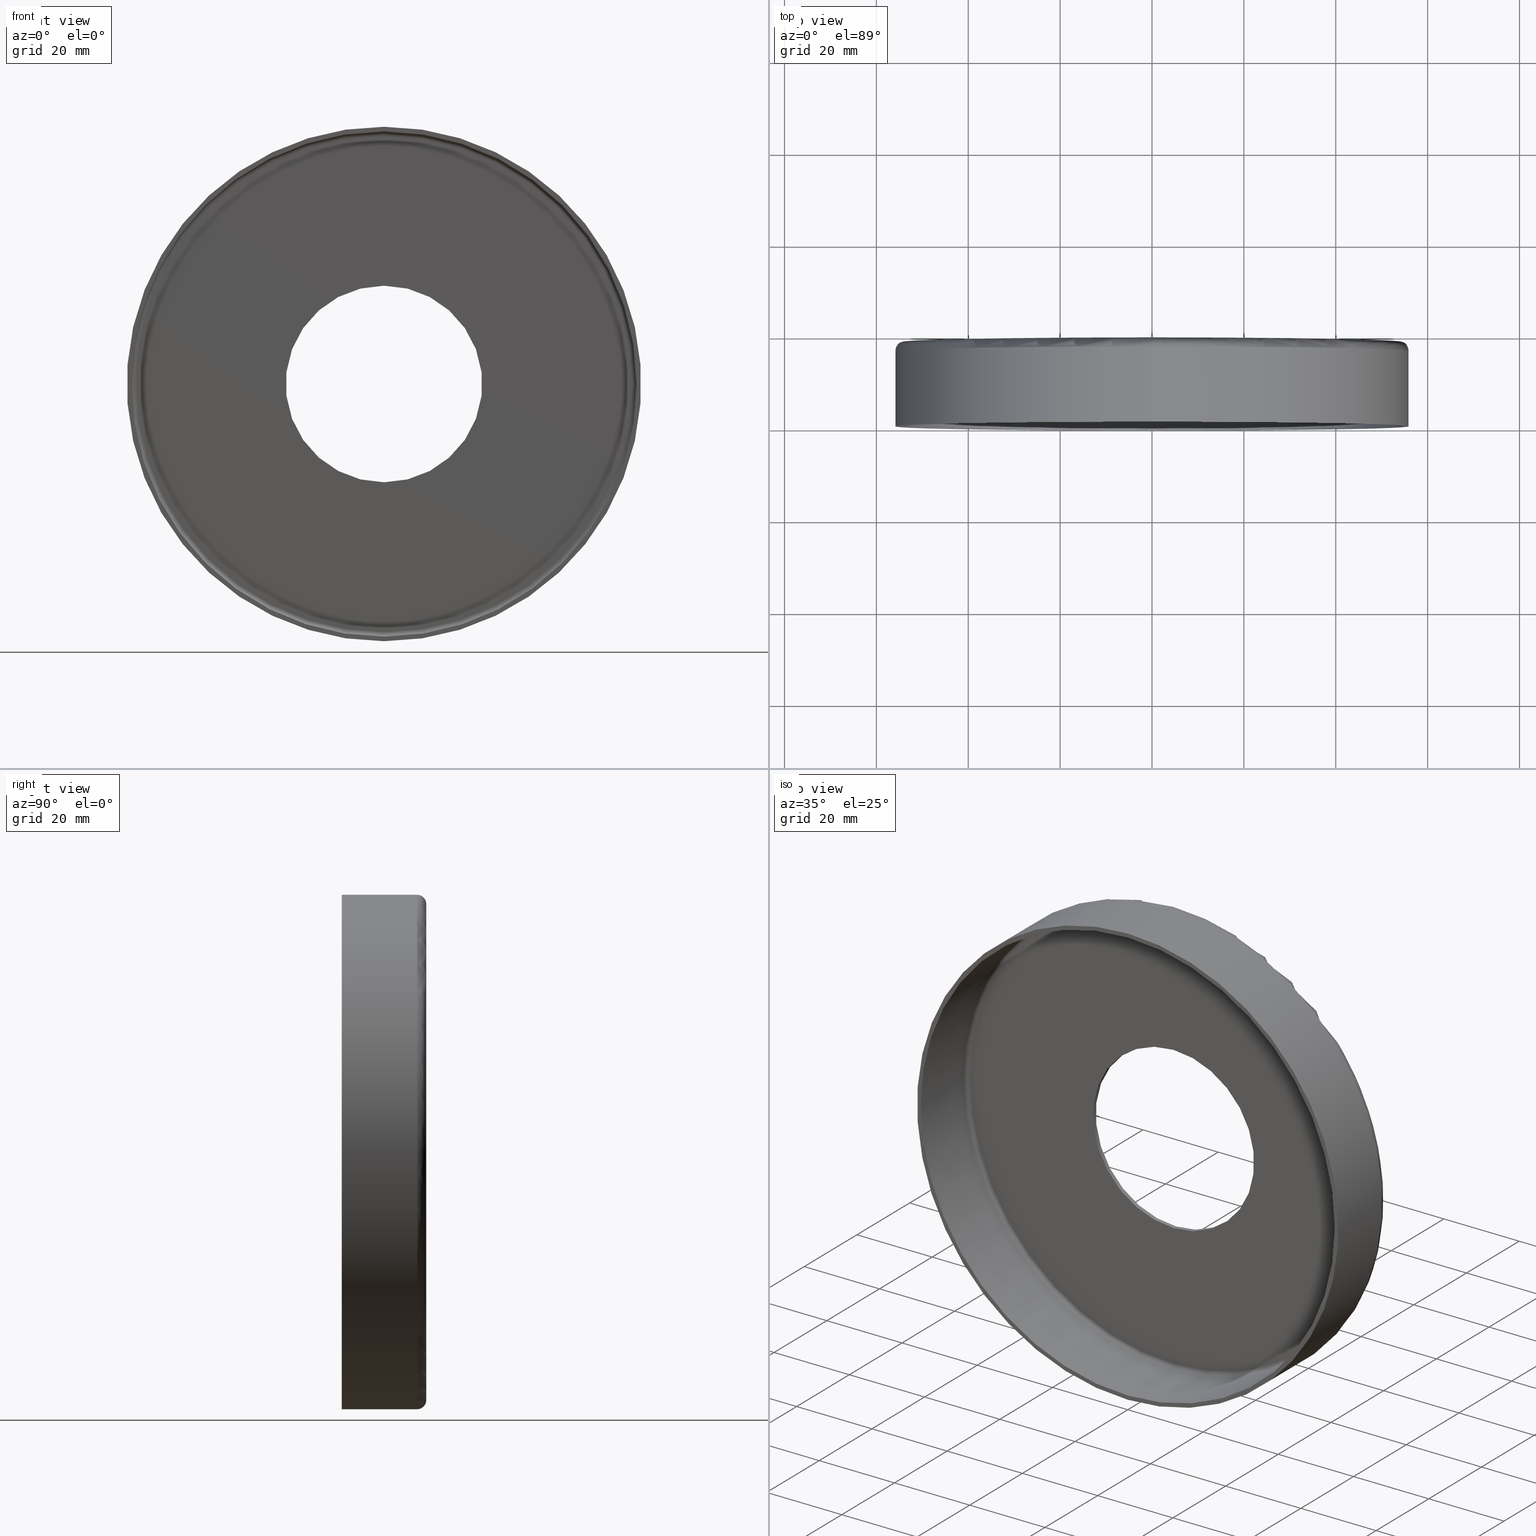
[diagram: canonical four-view strip — front | top / right | iso, engineering-drawing reading convention]
A machine part, canonical four-view strip (front | top / right | iso — engineering-drawing reading convention). The complete STEP part file that produces these views, byte-faithful:
ISO-10303-21;
HEADER;
FILE_DESCRIPTION (( 'STEP AP214' ),
    '1' );
FILE_NAME ('���. KRT510.STEP',
    '2014-06-03T10:10:46',
    ( '' ),
    ( '' ),
    'SwSTEP 2.0',
    'SolidWorks 2014',
    '' );
FILE_SCHEMA (( 'AUTOMOTIVE_DESIGN' ));
ENDSEC;

DATA;
#1 = AXIS2_PLACEMENT_3D ( 'NONE', #344, #253, #210 ) ;
#2 =( NAMED_UNIT ( * ) SI_UNIT ( $, .STERADIAN. ) SOLID_ANGLE_UNIT ( ) );
#3 = ORIENTED_EDGE ( 'NONE', *, *, #94, .F. ) ;
#4 = SURFACE_SIDE_STYLE ('',( #31 ) ) ;
#5 = VECTOR ( 'NONE', #15, 1000.000000000000000 ) ;
#6 = DIRECTION ( 'NONE',  ( 0.0000000000000000000, 0.0000000000000000000, 1.000000000000000000 ) ) ;
#7 = ORIENTED_EDGE ( 'NONE', *, *, #364, .F. ) ;
#8 = ADVANCED_FACE ( 'NONE', ( #284 ), #32, .T. ) ;
#9 = DIRECTION ( 'NONE',  ( -0.0000000000000000000, -1.000000000000000000, -0.0000000000000000000 ) ) ;
#10 =( GEOMETRIC_REPRESENTATION_CONTEXT ( 3 ) GLOBAL_UNCERTAINTY_ASSIGNED_CONTEXT ( ( #154 ) ) GLOBAL_UNIT_ASSIGNED_CONTEXT ( ( #223, #289, #349 ) ) REPRESENTATION_CONTEXT ( 'NONE', 'WORKASPACE' ) );
#11 = AXIS2_PLACEMENT_3D ( 'NONE', #114, #297, #328 ) ;
#12 = FILL_AREA_STYLE ('',( #191 ) ) ;
#13 = VERTEX_POINT ( 'NONE', #335 ) ;
#14 = PRESENTATION_STYLE_ASSIGNMENT (( #109 ) ) ;
#15 = DIRECTION ( 'NONE',  ( -0.0000000000000000000, 1.000000000000000000, -0.0000000000000000000 ) ) ;
#16 = ADVANCED_BREP_SHAPE_REPRESENTATION ( '�. KRT510', ( #238, #250 ), #301 ) ;
#17 = DIRECTION ( 'NONE',  ( 0.0000000000000000000, 0.0000000000000000000, -1.000000000000000000 ) ) ;
#18 = PRODUCT ( '���. KRT510', '���. KRT510', '', ( #299 ) ) ;
#19 = DIRECTION ( 'NONE',  ( 0.0000000000000000000, 1.000000000000000000, 0.0000000000000000000 ) ) ;
#20 = ORIENTED_EDGE ( 'NONE', *, *, #391, .T. ) ;
#21 = AXIS2_PLACEMENT_3D ( 'NONE', #319, #78, #318 ) ;
#22 = CYLINDRICAL_SURFACE ( 'NONE', #323, 21.39999999999999900 ) ;
#23 = CARTESIAN_POINT ( 'NONE',  ( 0.0000000000000000000, 17.39999999999999900, 54.00000000000000700 ) ) ;
#24 = CIRCLE ( 'NONE', #127, 2.000000000000001800 ) ;
#25 = TOROIDAL_SURFACE ( 'NONE', #140, 54.00000000000000700, 1.000000000000000000 ) ;
#26 = CARTESIAN_POINT ( 'NONE',  ( 0.0000000000000000000, 16.39999999999999900, -56.00000000000000700 ) ) ;
#27 = VERTEX_POINT ( 'NONE', #367 ) ;
#28 = FILL_AREA_STYLE ('',( #204 ) ) ;
#29 = ORIENTED_EDGE ( 'NONE', *, *, #96, .F. ) ;
#30 = CARTESIAN_POINT ( 'NONE',  ( 0.0000000000000000000, 0.0000000000000000000, 0.0000000000000000000 ) ) ;
#31 = SURFACE_STYLE_FILL_AREA ( #28 ) ;
#32 = TOROIDAL_SURFACE ( 'NONE', #111, 54.00000000000000700, 2.000000000000000000 ) ;
#33 = AXIS2_PLACEMENT_3D ( 'NONE', #288, #290, #355 ) ;
#34 = EDGE_CURVE ( 'NONE', #379, #76, #163, .T. ) ;
#35 = DIRECTION ( 'NONE',  ( -0.0000000000000000000, 1.000000000000000000, -0.0000000000000000000 ) ) ;
#36 = CARTESIAN_POINT ( 'NONE',  ( 0.0000000000000000000, 16.39999999999999900, 54.00000000000000700 ) ) ;
#37 = ORIENTED_EDGE ( 'NONE', *, *, #176, .F. ) ;
#38 = LINE ( 'NONE', #77, #153 ) ;
#39 = ADVANCED_FACE ( 'NONE', ( #182 ), #22, .F. ) ;
#40 = DIRECTION ( 'NONE',  ( 0.0000000000000000000, 1.000000000000000000, 0.0000000000000000000 ) ) ;
#41 = AXIS2_PLACEMENT_3D ( 'NONE', #135, #19, #226 ) ;
#42 = CARTESIAN_POINT ( 'NONE',  ( 6.858022075225179300E-015, 16.39999999999999900, 56.00000000000000700 ) ) ;
#43 = PRESENTATION_STYLE_ASSIGNMENT (( #244 ) ) ;
#44 = DIRECTION ( 'NONE',  ( 0.0000000000000000000, 0.0000000000000000000, 1.000000000000000000 ) ) ;
#45 = ORIENTED_EDGE ( 'NONE', *, *, #156, .F. ) ;
#46 = PRODUCT_DEFINITION_CONTEXT ( 'detailed design', #239, 'design' ) ;
#47 = CARTESIAN_POINT ( 'NONE',  ( 6.858022075225179300E-015, 0.0000000000000000000, 56.00000000000000700 ) ) ;
#48 = AXIS2_PLACEMENT_3D ( 'NONE', #68, #101, #6 ) ;
#49 = DIRECTION ( 'NONE',  ( -0.0000000000000000000, -1.000000000000000000, -0.0000000000000000000 ) ) ;
#50 = ORIENTED_EDGE ( 'NONE', *, *, #159, .F. ) ;
#51 = PRODUCT_DEFINITION_FORMATION_WITH_SPECIFIED_SOURCE ( 'ANY', '', #18, .NOT_KNOWN. ) ;
#52 = DIRECTION ( 'NONE',  ( 0.0000000000000000000, 1.000000000000000000, 0.0000000000000000000 ) ) ;
#53 = EDGE_LOOP ( 'NONE', ( #186, #112 ) ) ;
#54 = EDGE_LOOP ( 'NONE', ( #314, #320, #237, #321 ) ) ;
#55 = CIRCLE ( 'NONE', #308, 21.39999999999999900 ) ;
#56 = AXIS2_PLACEMENT_3D ( 'NONE', #384, #110, #198 ) ;
#57 = PLANE ( 'NONE',  #394 ) ;
#58 = MECHANICAL_DESIGN_GEOMETRIC_PRESENTATION_REPRESENTATION (  '', ( #267 ), #212 ) ;
#59 = CYLINDRICAL_SURFACE ( 'NONE', #117, 55.00000000000000700 ) ;
#60 = DIRECTION ( 'NONE',  ( -0.0000000000000000000, -1.000000000000000000, -0.0000000000000000000 ) ) ;
#61 = ORIENTED_EDGE ( 'NONE', *, *, #159, .T. ) ;
#62 = ORIENTED_EDGE ( 'NONE', *, *, #94, .T. ) ;
#63 = DIRECTION ( 'NONE',  ( 1.000000000000000000, 0.0000000000000000000, 0.0000000000000000000 ) ) ;
#64 = ORIENTED_EDGE ( 'NONE', *, *, #118, .F. ) ;
#65 = ORIENTED_EDGE ( 'NONE', *, *, #234, .T. ) ;
#66 = LINE ( 'NONE', #272, #387 ) ;
#67 = EDGE_CURVE ( 'NONE', #27, #245, #247, .T. ) ;
#68 = CARTESIAN_POINT ( 'NONE',  ( 0.0000000000000000000, 17.39999999999999900, 0.0000000000000000000 ) ) ;
#69 = CARTESIAN_POINT ( 'NONE',  ( 0.0000000000000000000, 18.39999999999999900, 0.0000000000000000000 ) ) ;
#70 = DIRECTION ( 'NONE',  ( 0.0000000000000000000, 1.000000000000000000, 0.0000000000000000000 ) ) ;
#71 = EDGE_LOOP ( 'NONE', ( #381, #92, #65, #211 ) ) ;
#72 = PLANE ( 'NONE',  #202 ) ;
#73 = AXIS2_PLACEMENT_3D ( 'NONE', #395, #87, #362 ) ;
#74 = CARTESIAN_POINT ( 'NONE',  ( 6.735557395310444200E-015, 0.0000000000000000000, 55.00000000000000700 ) ) ;
#75 = CARTESIAN_POINT ( 'NONE',  ( 0.0000000000000000000, 16.39999999999999900, 0.0000000000000000000 ) ) ;
#76 = VERTEX_POINT ( 'NONE', #132 ) ;
#77 = CARTESIAN_POINT ( 'NONE',  ( 6.858022075225179300E-015, 18.39999999999999900, 56.00000000000000700 ) ) ;
#78 = DIRECTION ( 'NONE',  ( -0.0000000000000000000, -1.000000000000000000, -0.0000000000000000000 ) ) ;
#79 = EDGE_CURVE ( 'NONE', #251, #177, #169, .T. ) ;
#80 = DIRECTION ( 'NONE',  ( 1.000000000000000000, -0.0000000000000000000, 1.224646799147353200E-016 ) ) ;
#81 = FACE_BOUND ( 'NONE', #329, .T. ) ;
#82 = CARTESIAN_POINT ( 'NONE',  ( 0.0000000000000000000, 17.39999999999999900, 0.0000000000000000000 ) ) ;
#83 = EDGE_LOOP ( 'NONE', ( #128, #61 ) ) ;
#84 = VERTEX_POINT ( 'NONE', #187 ) ;
#85 = CARTESIAN_POINT ( 'NONE',  ( 0.0000000000000000000, 0.0000000000000000000, 0.0000000000000000000 ) ) ;
#86 = DIRECTION ( 'NONE',  ( 0.0000000000000000000, -0.0000000000000000000, 1.000000000000000000 ) ) ;
#87 = DIRECTION ( 'NONE',  ( 0.0000000000000000000, 1.000000000000000000, 0.0000000000000000000 ) ) ;
#88 = EDGE_LOOP ( 'NONE', ( #195, #103, #306, #260 ) ) ;
#89 = EDGE_CURVE ( 'NONE', #178, #300, #243, .T. ) ;
#90 = APPLICATION_PROTOCOL_DEFINITION ( 'draft international standard', 'automotive_design', 1998, #239 ) ;
#91 = VERTEX_POINT ( 'NONE', #42 ) ;
#92 = ORIENTED_EDGE ( 'NONE', *, *, #175, .T. ) ;
#93 = DIRECTION ( 'NONE',  ( 0.0000000000000000000, 0.0000000000000000000, 1.000000000000000000 ) ) ;
#94 = EDGE_CURVE ( 'NONE', #300, #178, #160, .T. ) ;
#95 = SURFACE_STYLE_FILL_AREA ( #12 ) ;
#96 = EDGE_CURVE ( 'NONE', #91, #300, #24, .T. ) ;
#97 = PRODUCT_DEFINITION ( 'UNKNOWN', '', #51, #46 ) ;
#98 = UNCERTAINTY_MEASURE_WITH_UNIT (LENGTH_MEASURE( 1.000000000000000100E-005 ), #240, 'distance_accuracy_value', 'NONE');
#99 = EDGE_LOOP ( 'NONE', ( #371, #351, #268, #326 ) ) ;
#100 = EDGE_LOOP ( 'NONE', ( #7, #126, #120, #206 ) ) ;
#101 = DIRECTION ( 'NONE',  ( 0.0000000000000000000, 1.000000000000000000, 0.0000000000000000000 ) ) ;
#102 = AXIS2_PLACEMENT_3D ( 'NONE', #295, #171, #357 ) ;
#103 = ORIENTED_EDGE ( 'NONE', *, *, #276, .T. ) ;
#104 = CARTESIAN_POINT ( 'NONE',  ( 0.0000000000000000000, 16.39999999999999900, 0.0000000000000000000 ) ) ;
#105 = ADVANCED_FACE ( 'NONE', ( #81, #173 ), #72, .T. ) ;
#106 = CARTESIAN_POINT ( 'NONE',  ( 0.0000000000000000000, 17.39999999999999900, 21.39999999999999900 ) ) ;
#107 = VECTOR ( 'NONE', #188, 1000.000000000000000 ) ;
#108 = CIRCLE ( 'NONE', #192, 55.00000000000000700 ) ;
#109 = SURFACE_STYLE_USAGE ( .BOTH. , #220 ) ;
#110 = DIRECTION ( 'NONE',  ( -0.0000000000000000000, 1.000000000000000000, -0.0000000000000000000 ) ) ;
#111 = AXIS2_PLACEMENT_3D ( 'NONE', #183, #309, #207 ) ;
#112 = ORIENTED_EDGE ( 'NONE', *, *, #234, .F. ) ;
#113 = CIRCLE ( 'NONE', #225, 21.39999999999999900 ) ;
#114 = CARTESIAN_POINT ( 'NONE',  ( 0.0000000000000000000, 16.39999999999999900, 0.0000000000000000000 ) ) ;
#115 = VERTEX_POINT ( 'NONE', #374 ) ;
#116 = CYLINDRICAL_SURFACE ( 'NONE', #21, 56.00000000000000700 ) ;
#117 = AXIS2_PLACEMENT_3D ( 'NONE', #257, #258, #227 ) ;
#118 = EDGE_CURVE ( 'NONE', #322, #91, #365, .T. ) ;
#119 = EDGE_LOOP ( 'NONE', ( #62, #316 ) ) ;
#120 = ORIENTED_EDGE ( 'NONE', *, *, #312, .F. ) ;
#121 = CYLINDRICAL_SURFACE ( 'NONE', #269, 56.00000000000000700 ) ;
#122 = EDGE_CURVE ( 'NONE', #137, #285, #360, .T. ) ;
#123 = APPLICATION_PROTOCOL_DEFINITION ( 'draft international standard', 'automotive_design', 1998, #273 ) ;
#124 = ORIENTED_EDGE ( 'NONE', *, *, #89, .F. ) ;
#125 = CIRCLE ( 'NONE', #41, 56.00000000000000700 ) ;
#126 = ORIENTED_EDGE ( 'NONE', *, *, #242, .T. ) ;
#127 = AXIS2_PLACEMENT_3D ( 'NONE', #36, #346, #158 ) ;
#128 = ORIENTED_EDGE ( 'NONE', *, *, #122, .T. ) ;
#129 = COLOUR_RGB ( '',0.7921568627450980000, 0.8196078431372548800, 0.9333333333333333500 ) ;
#130 = DIRECTION ( 'NONE',  ( 0.0000000000000000000, 1.000000000000000000, 0.0000000000000000000 ) ) ;
#131 = DIRECTION ( 'NONE',  ( 0.0000000000000000000, 0.0000000000000000000, 1.000000000000000000 ) ) ;
#132 = CARTESIAN_POINT ( 'NONE',  ( 6.674325055353075800E-015, 17.39999999999999900, -54.00000000000000700 ) ) ;
#133 = CIRCLE ( 'NONE', #102, 2.000000000000001800 ) ;
#134 = PRESENTATION_LAYER_ASSIGNMENT (  '', '', ( #366 ) ) ;
#135 = CARTESIAN_POINT ( 'NONE',  ( 0.0000000000000000000, 0.0000000000000000000, 0.0000000000000000000 ) ) ;
#136 = CLOSED_SHELL ( 'NONE', ( #283, #291, #157, #219, #214, #185, #105, #343, #8, #168, #378, #347, #39 ) ) ;
#137 = VERTEX_POINT ( 'NONE', #106 ) ;
#138 = CIRCLE ( 'NONE', #303, 1.000000000000000900 ) ;
#139 = CARTESIAN_POINT ( 'NONE',  ( 6.735557395310444200E-015, 18.39999999999999900, 55.00000000000000700 ) ) ;
#140 = AXIS2_PLACEMENT_3D ( 'NONE', #144, #230, #231 ) ;
#141 = CARTESIAN_POINT ( 'NONE',  ( 0.0000000000000000000, 17.39999999999999900, 0.0000000000000000000 ) ) ;
#142 = EDGE_LOOP ( 'NONE', ( #397, #229 ) ) ;
#143 = DIRECTION ( 'NONE',  ( 0.0000000000000000000, 0.0000000000000000000, -1.000000000000000000 ) ) ;
#144 = CARTESIAN_POINT ( 'NONE',  ( 0.0000000000000000000, 16.39999999999999900, 0.0000000000000000000 ) ) ;
#145 = CARTESIAN_POINT ( 'NONE',  ( 0.0000000000000000000, 16.39999999999999900, 0.0000000000000000000 ) ) ;
#146 = EDGE_LOOP ( 'NONE', ( #372, #280, #20, #304 ) ) ;
#147 = FACE_OUTER_BOUND ( 'NONE', #277, .T. ) ;
#148 =( NAMED_UNIT ( * ) PLANE_ANGLE_UNIT ( ) SI_UNIT ( $, .RADIAN. ) );
#149 = EDGE_CURVE ( 'NONE', #84, #115, #113, .T. ) ;
#150 = ORIENTED_EDGE ( 'NONE', *, *, #96, .T. ) ;
#151 = PRESENTATION_LAYER_ASSIGNMENT (  '', '', ( #267 ) ) ;
#152 = MECHANICAL_DESIGN_GEOMETRIC_PRESENTATION_REPRESENTATION (  '', ( #366 ), #10 ) ;
#153 = VECTOR ( 'NONE', #167, 1000.000000000000000 ) ;
#154 = UNCERTAINTY_MEASURE_WITH_UNIT (LENGTH_MEASURE( 1.000000000000000100E-005 ), #223, 'distance_accuracy_value', 'NONE');
#155 = ORIENTED_EDGE ( 'NONE', *, *, #79, .F. ) ;
#156 = EDGE_CURVE ( 'NONE', #91, #322, #275, .T. ) ;
#157 = ADVANCED_FACE ( 'NONE', ( #201 ), #205, .F. ) ;
#158 = DIRECTION ( 'NONE',  ( 0.0000000000000000000, 0.0000000000000000000, 1.000000000000000000 ) ) ;
#159 = EDGE_CURVE ( 'NONE', #285, #137, #334, .T. ) ;
#160 = CIRCLE ( 'NONE', #1, 54.00000000000000700 ) ;
#161 = CARTESIAN_POINT ( 'NONE',  ( 0.0000000000000000000, 0.0000000000000000000, 0.0000000000000000000 ) ) ;
#162 = DIRECTION ( 'NONE',  ( 0.0000000000000000000, 1.000000000000000000, 0.0000000000000000000 ) ) ;
#163 = CIRCLE ( 'NONE', #48, 54.00000000000000700 ) ;
#164 = CIRCLE ( 'NONE', #208, 1.000000000000000900 ) ;
#165 = DIRECTION ( 'NONE',  ( -0.0000000000000000000, -1.000000000000000000, -0.0000000000000000000 ) ) ;
#166 = AXIS2_PLACEMENT_3D ( 'NONE', #382, #40, #131 ) ;
#167 = DIRECTION ( 'NONE',  ( -0.0000000000000000000, -1.000000000000000000, -0.0000000000000000000 ) ) ;
#168 = ADVANCED_FACE ( 'NONE', ( #338 ), #59, .F. ) ;
#169 = CIRCLE ( 'NONE', #180, 56.00000000000000700 ) ;
#170 = CARTESIAN_POINT ( 'NONE',  ( 0.0000000000000000000, 0.0000000000000000000, 0.0000000000000000000 ) ) ;
#171 = DIRECTION ( 'NONE',  ( 1.000000000000000000, -0.0000000000000000000, 1.224646799147353200E-016 ) ) ;
#172 = SHAPE_DEFINITION_REPRESENTATION ( #264, #16 ) ;
#173 = FACE_OUTER_BOUND ( 'NONE', #119, .T. ) ;
#174 = FACE_OUTER_BOUND ( 'NONE', #53, .T. ) ;
#175 = EDGE_CURVE ( 'NONE', #27, #76, #138, .T. ) ;
#176 = EDGE_CURVE ( 'NONE', #137, #84, #209, .T. ) ;
#177 = VERTEX_POINT ( 'NONE', #47 ) ;
#178 = VERTEX_POINT ( 'NONE', #255 ) ;
#179 = VECTOR ( 'NONE', #165, 1000.000000000000000 ) ;
#180 = AXIS2_PLACEMENT_3D ( 'NONE', #161, #313, #339 ) ;
#181 = CARTESIAN_POINT ( 'NONE',  ( 0.0000000000000000000, 0.0000000000000000000, 0.0000000000000000000 ) ) ;
#182 = FACE_OUTER_BOUND ( 'NONE', #54, .T. ) ;
#183 = CARTESIAN_POINT ( 'NONE',  ( 0.0000000000000000000, 16.39999999999999900, 0.0000000000000000000 ) ) ;
#184 = PRODUCT_RELATED_PRODUCT_CATEGORY ( 'part', '', ( #18 ) ) ;
#185 = ADVANCED_FACE ( 'NONE', ( #373 ), #116, .T. ) ;
#186 = ORIENTED_EDGE ( 'NONE', *, *, #34, .F. ) ;
#187 = CARTESIAN_POINT ( 'NONE',  ( 0.0000000000000000000, 18.39999999999999900, 21.39999999999999900 ) ) ;
#188 = DIRECTION ( 'NONE',  ( -0.0000000000000000000, -1.000000000000000000, -0.0000000000000000000 ) ) ;
#189 = CARTESIAN_POINT ( 'NONE',  ( 0.0000000000000000000, 17.39999999999999900, 0.0000000000000000000 ) ) ;
#190 = TOROIDAL_SURFACE ( 'NONE', #354, 54.00000000000000700, 2.000000000000000000 ) ;
#191 = FILL_AREA_STYLE_COLOUR ( '', #129 ) ;
#192 = AXIS2_PLACEMENT_3D ( 'NONE', #170, #390, #197 ) ;
#193 = CARTESIAN_POINT ( 'NONE',  ( 6.613092715395708300E-015, 16.39999999999999900, -54.00000000000000700 ) ) ;
#194 = CARTESIAN_POINT ( 'NONE',  ( 0.0000000000000000000, 17.39999999999999900, 0.0000000000000000000 ) ) ;
#195 = ORIENTED_EDGE ( 'NONE', *, *, #118, .T. ) ;
#196 = FACE_OUTER_BOUND ( 'NONE', #270, .T. ) ;
#197 = DIRECTION ( 'NONE',  ( 0.0000000000000000000, 0.0000000000000000000, 1.000000000000000000 ) ) ;
#198 = DIRECTION ( 'NONE',  ( 0.0000000000000000000, 0.0000000000000000000, 1.000000000000000000 ) ) ;
#199 = ORIENTED_EDGE ( 'NONE', *, *, #149, .F. ) ;
#200 = TOROIDAL_SURFACE ( 'NONE', #11, 54.00000000000000700, 1.000000000000000000 ) ;
#201 = FACE_OUTER_BOUND ( 'NONE', #100, .T. ) ;
#202 = AXIS2_PLACEMENT_3D ( 'NONE', #279, #218, #287 ) ;
#203 = DIRECTION ( 'NONE',  ( 0.0000000000000000000, -0.0000000000000000000, 1.000000000000000000 ) ) ;
#204 = FILL_AREA_STYLE_COLOUR ( '', #233 ) ;
#205 = CYLINDRICAL_SURFACE ( 'NONE', #342, 55.00000000000000700 ) ;
#206 = ORIENTED_EDGE ( 'NONE', *, *, #67, .F. ) ;
#207 = DIRECTION ( 'NONE',  ( 0.0000000000000000000, 0.0000000000000000000, 1.000000000000000000 ) ) ;
#208 = AXIS2_PLACEMENT_3D ( 'NONE', #358, #292, #393 ) ;
#209 = LINE ( 'NONE', #259, #5 ) ;
#210 = DIRECTION ( 'NONE',  ( 0.0000000000000000000, 0.0000000000000000000, 1.000000000000000000 ) ) ;
#211 = ORIENTED_EDGE ( 'NONE', *, *, #375, .F. ) ;
#212 =( GEOMETRIC_REPRESENTATION_CONTEXT ( 3 ) GLOBAL_UNCERTAINTY_ASSIGNED_CONTEXT ( ( #98 ) ) GLOBAL_UNIT_ASSIGNED_CONTEXT ( ( #240, #148, #2 ) ) REPRESENTATION_CONTEXT ( 'NONE', 'WORKASPACE' ) );
#213 = CARTESIAN_POINT ( 'NONE',  ( 0.0000000000000000000, 16.39999999999999900, 0.0000000000000000000 ) ) ;
#214 = ADVANCED_FACE ( 'NONE', ( #353 ), #121, .T. ) ;
#215 = DIRECTION ( 'NONE',  ( 0.0000000000000000000, 0.0000000000000000000, 1.000000000000000000 ) ) ;
#216 = EDGE_CURVE ( 'NONE', #27, #13, #235, .T. ) ;
#217 = DIRECTION ( 'NONE',  ( 0.0000000000000000000, 0.0000000000000000000, -1.000000000000000000 ) ) ;
#218 = DIRECTION ( 'NONE',  ( 0.0000000000000000000, 1.000000000000000000, 0.0000000000000000000 ) ) ;
#219 = ADVANCED_FACE ( 'NONE', ( #196 ), #190, .T. ) ;
#220 = SURFACE_SIDE_STYLE ('',( #95 ) ) ;
#221 = DIRECTION ( 'NONE',  ( 0.0000000000000000000, 0.0000000000000000000, 1.000000000000000000 ) ) ;
#222 = FACE_OUTER_BOUND ( 'NONE', #356, .T. ) ;
#223 =( LENGTH_UNIT ( ) NAMED_UNIT ( * ) SI_UNIT ( .MILLI., .METRE. ) );
#224 = ORIENTED_EDGE ( 'NONE', *, *, #256, .F. ) ;
#225 = AXIS2_PLACEMENT_3D ( 'NONE', #281, #130, #376 ) ;
#226 = DIRECTION ( 'NONE',  ( 0.0000000000000000000, 0.0000000000000000000, 1.000000000000000000 ) ) ;
#227 = DIRECTION ( 'NONE',  ( 0.0000000000000000000, 0.0000000000000000000, -1.000000000000000000 ) ) ;
#228 = PLANE ( 'NONE',  #361 ) ;
#229 = ORIENTED_EDGE ( 'NONE', *, *, #369, .T. ) ;
#230 = DIRECTION ( 'NONE',  ( 0.0000000000000000000, 1.000000000000000000, 0.0000000000000000000 ) ) ;
#231 = DIRECTION ( 'NONE',  ( 0.0000000000000000000, 0.0000000000000000000, 1.000000000000000000 ) ) ;
#232 = CARTESIAN_POINT ( 'NONE',  ( 0.0000000000000000000, 18.39999999999999900, 0.0000000000000000000 ) ) ;
#233 = COLOUR_RGB ( '',0.7921568627450980000, 0.8196078431372548800, 0.9333333333333333500 ) ;
#234 = EDGE_CURVE ( 'NONE', #76, #379, #278, .T. ) ;
#235 = CIRCLE ( 'NONE', #33, 55.00000000000000700 ) ;
#236 = DIRECTION ( 'NONE',  ( 0.0000000000000000000, 0.0000000000000000000, 1.000000000000000000 ) ) ;
#237 = ORIENTED_EDGE ( 'NONE', *, *, #176, .T. ) ;
#238 = MANIFOLD_SOLID_BREP ( '�����-��������1', #136 ) ;
#239 = APPLICATION_CONTEXT ( 'automotive_design' ) ;
#240 =( LENGTH_UNIT ( ) NAMED_UNIT ( * ) SI_UNIT ( .MILLI., .METRE. ) );
#241 = VERTEX_POINT ( 'NONE', #74 ) ;
#242 = EDGE_CURVE ( 'NONE', #13, #241, #311, .T. ) ;
#243 = CIRCLE ( 'NONE', #166, 54.00000000000000700 ) ;
#244 = SURFACE_STYLE_USAGE ( .BOTH. , #4 ) ;
#245 = VERTEX_POINT ( 'NONE', #348 ) ;
#246 = DIRECTION ( 'NONE',  ( 0.0000000000000000000, 0.0000000000000000000, 1.000000000000000000 ) ) ;
#247 = LINE ( 'NONE', #315, #107 ) ;
#248 = FACE_BOUND ( 'NONE', #142, .T. ) ;
#249 = ORIENTED_EDGE ( 'NONE', *, *, #331, .T. ) ;
#250 = AXIS2_PLACEMENT_3D ( 'NONE', #30, #246, #63 ) ;
#251 = VERTEX_POINT ( 'NONE', #350 ) ;
#252 = AXIS2_PLACEMENT_3D ( 'NONE', #141, #162, #383 ) ;
#253 = DIRECTION ( 'NONE',  ( 0.0000000000000000000, 1.000000000000000000, 0.0000000000000000000 ) ) ;
#254 = DIRECTION ( 'NONE',  ( -0.0000000000000000000, -1.000000000000000000, -0.0000000000000000000 ) ) ;
#255 = CARTESIAN_POINT ( 'NONE',  ( 6.735557395310443400E-015, 18.39999999999999900, -54.00000000000000700 ) ) ;
#256 = EDGE_CURVE ( 'NONE', #177, #251, #125, .T. ) ;
#257 = CARTESIAN_POINT ( 'NONE',  ( 0.0000000000000000000, 18.39999999999999900, 0.0000000000000000000 ) ) ;
#258 = DIRECTION ( 'NONE',  ( -0.0000000000000000000, -1.000000000000000000, -0.0000000000000000000 ) ) ;
#259 = CARTESIAN_POINT ( 'NONE',  ( 0.0000000000000000000, 0.0000000000000000000, 21.39999999999999900 ) ) ;
#260 = ORIENTED_EDGE ( 'NONE', *, *, #391, .F. ) ;
#261 = CYLINDRICAL_SURFACE ( 'NONE', #56, 21.39999999999999900 ) ;
#262 = DIRECTION ( 'NONE',  ( 0.0000000000000000000, 1.000000000000000000, 0.0000000000000000000 ) ) ;
#263 = AXIS2_PLACEMENT_3D ( 'NONE', #213, #254, #215 ) ;
#264 = PRODUCT_DEFINITION_SHAPE ( 'NONE', 'NONE',  #97 ) ;
#265 = ORIENTED_EDGE ( 'NONE', *, *, #375, .T. ) ;
#266 = DIRECTION ( 'NONE',  ( 0.0000000000000000000, 1.000000000000000000, 0.0000000000000000000 ) ) ;
#267 = STYLED_ITEM ( 'NONE', ( #43 ), #16 ) ;
#268 = ORIENTED_EDGE ( 'NONE', *, *, #67, .T. ) ;
#269 = AXIS2_PLACEMENT_3D ( 'NONE', #389, #49, #17 ) ;
#270 = EDGE_LOOP ( 'NONE', ( #64, #359, #3, #29 ) ) ;
#271 = FACE_OUTER_BOUND ( 'NONE', #71, .T. ) ;
#272 = CARTESIAN_POINT ( 'NONE',  ( 0.0000000000000000000, 18.39999999999999900, -56.00000000000000700 ) ) ;
#273 = APPLICATION_CONTEXT ( 'automotive_design' ) ;
#274 = ORIENTED_EDGE ( 'NONE', *, *, #175, .F. ) ;
#275 = CIRCLE ( 'NONE', #385, 56.00000000000000700 ) ;
#276 = EDGE_CURVE ( 'NONE', #91, #177, #38, .T. ) ;
#277 = EDGE_LOOP ( 'NONE', ( #274, #352, #265, #337 ) ) ;
#278 = CIRCLE ( 'NONE', #252, 54.00000000000000700 ) ;
#279 = CARTESIAN_POINT ( 'NONE',  ( 0.0000000000000000000, 18.39999999999999900, 0.0000000000000000000 ) ) ;
#280 = ORIENTED_EDGE ( 'NONE', *, *, #156, .T. ) ;
#281 = CARTESIAN_POINT ( 'NONE',  ( 0.0000000000000000000, 18.39999999999999900, 0.0000000000000000000 ) ) ;
#282 = AXIS2_PLACEMENT_3D ( 'NONE', #189, #70, #44 ) ;
#283 = ADVANCED_FACE ( 'NONE', ( #222 ), #261, .F. ) ;
#284 = FACE_OUTER_BOUND ( 'NONE', #296, .T. ) ;
#285 = VERTEX_POINT ( 'NONE', #396 ) ;
#286 = FACE_BOUND ( 'NONE', #83, .T. ) ;
#287 = DIRECTION ( 'NONE',  ( 0.0000000000000000000, -0.0000000000000000000, 1.000000000000000000 ) ) ;
#288 = CARTESIAN_POINT ( 'NONE',  ( 0.0000000000000000000, 16.39999999999999900, 0.0000000000000000000 ) ) ;
#289 =( NAMED_UNIT ( * ) PLANE_ANGLE_UNIT ( ) SI_UNIT ( $, .RADIAN. ) );
#290 = DIRECTION ( 'NONE',  ( -0.0000000000000000000, -1.000000000000000000, -0.0000000000000000000 ) ) ;
#291 = ADVANCED_FACE ( 'NONE', ( #271 ), #25, .F. ) ;
#292 = DIRECTION ( 'NONE',  ( -1.000000000000000000, 0.0000000000000000000, 0.0000000000000000000 ) ) ;
#293 = EDGE_LOOP ( 'NONE', ( #155, #224 ) ) ;
#294 = VECTOR ( 'NONE', #392, 1000.000000000000000 ) ;
#295 = CARTESIAN_POINT ( 'NONE',  ( 6.613092715395708300E-015, 16.39999999999999900, -54.00000000000000700 ) ) ;
#296 = EDGE_LOOP ( 'NONE', ( #340, #45, #150, #124 ) ) ;
#297 = DIRECTION ( 'NONE',  ( 0.0000000000000000000, 1.000000000000000000, 0.0000000000000000000 ) ) ;
#298 = EDGE_CURVE ( 'NONE', #322, #178, #133, .T. ) ;
#299 = PRODUCT_CONTEXT ( 'NONE', #273, 'mechanical' ) ;
#300 = VERTEX_POINT ( 'NONE', #330 ) ;
#301 =( GEOMETRIC_REPRESENTATION_CONTEXT ( 3 ) GLOBAL_UNCERTAINTY_ASSIGNED_CONTEXT ( ( #370 ) ) GLOBAL_UNIT_ASSIGNED_CONTEXT ( ( #302, #307, #305 ) ) REPRESENTATION_CONTEXT ( 'NONE', 'WORKASPACE' ) );
#302 =( LENGTH_UNIT ( ) NAMED_UNIT ( * ) SI_UNIT ( .MILLI., .METRE. ) );
#303 = AXIS2_PLACEMENT_3D ( 'NONE', #193, #80, #386 ) ;
#304 = ORIENTED_EDGE ( 'NONE', *, *, #79, .T. ) ;
#305 =( NAMED_UNIT ( * ) SI_UNIT ( $, .STERADIAN. ) SOLID_ANGLE_UNIT ( ) );
#306 = ORIENTED_EDGE ( 'NONE', *, *, #256, .T. ) ;
#307 =( NAMED_UNIT ( * ) PLANE_ANGLE_UNIT ( ) SI_UNIT ( $, .RADIAN. ) );
#308 = AXIS2_PLACEMENT_3D ( 'NONE', #232, #266, #236 ) ;
#309 = DIRECTION ( 'NONE',  ( 0.0000000000000000000, 1.000000000000000000, 0.0000000000000000000 ) ) ;
#310 = ORIENTED_EDGE ( 'NONE', *, *, #336, .T. ) ;
#311 = LINE ( 'NONE', #139, #179 ) ;
#312 = EDGE_CURVE ( 'NONE', #245, #241, #327, .T. ) ;
#313 = DIRECTION ( 'NONE',  ( 0.0000000000000000000, 1.000000000000000000, 0.0000000000000000000 ) ) ;
#314 = ORIENTED_EDGE ( 'NONE', *, *, #331, .F. ) ;
#315 = CARTESIAN_POINT ( 'NONE',  ( 0.0000000000000000000, 18.39999999999999900, -55.00000000000000700 ) ) ;
#316 = ORIENTED_EDGE ( 'NONE', *, *, #89, .T. ) ;
#317 = DIRECTION ( 'NONE',  ( 0.0000000000000000000, 1.000000000000000000, 0.0000000000000000000 ) ) ;
#318 = DIRECTION ( 'NONE',  ( 0.0000000000000000000, 0.0000000000000000000, -1.000000000000000000 ) ) ;
#319 = CARTESIAN_POINT ( 'NONE',  ( 0.0000000000000000000, 18.39999999999999900, 0.0000000000000000000 ) ) ;
#320 = ORIENTED_EDGE ( 'NONE', *, *, #122, .F. ) ;
#321 = ORIENTED_EDGE ( 'NONE', *, *, #149, .T. ) ;
#322 = VERTEX_POINT ( 'NONE', #26 ) ;
#323 = AXIS2_PLACEMENT_3D ( 'NONE', #181, #35, #93 ) ;
#324 = CARTESIAN_POINT ( 'NONE',  ( 2.620744150175335900E-015, 0.0000000000000000000, -21.39999999999999900 ) ) ;
#325 = AXIS2_PLACEMENT_3D ( 'NONE', #194, #317, #388 ) ;
#326 = ORIENTED_EDGE ( 'NONE', *, *, #369, .F. ) ;
#327 = CIRCLE ( 'NONE', #73, 55.00000000000000700 ) ;
#328 = DIRECTION ( 'NONE',  ( 0.0000000000000000000, 0.0000000000000000000, 1.000000000000000000 ) ) ;
#329 = EDGE_LOOP ( 'NONE', ( #199, #333 ) ) ;
#330 = CARTESIAN_POINT ( 'NONE',  ( 0.0000000000000000000, 18.39999999999999900, 54.00000000000000700 ) ) ;
#331 = EDGE_CURVE ( 'NONE', #285, #115, #398, .T. ) ;
#332 = DIRECTION ( 'NONE',  ( 0.0000000000000000000, 1.000000000000000000, 0.0000000000000000000 ) ) ;
#333 = ORIENTED_EDGE ( 'NONE', *, *, #336, .F. ) ;
#334 = CIRCLE ( 'NONE', #325, 21.39999999999999900 ) ;
#335 = CARTESIAN_POINT ( 'NONE',  ( 6.735557395310444200E-015, 16.39999999999999900, 55.00000000000000700 ) ) ;
#336 = EDGE_CURVE ( 'NONE', #115, #84, #55, .T. ) ;
#337 = ORIENTED_EDGE ( 'NONE', *, *, #34, .T. ) ;
#338 = FACE_OUTER_BOUND ( 'NONE', #99, .T. ) ;
#339 = DIRECTION ( 'NONE',  ( 0.0000000000000000000, 0.0000000000000000000, 1.000000000000000000 ) ) ;
#340 = ORIENTED_EDGE ( 'NONE', *, *, #298, .F. ) ;
#341 = DIRECTION ( 'NONE',  ( -0.0000000000000000000, -1.000000000000000000, -0.0000000000000000000 ) ) ;
#342 = AXIS2_PLACEMENT_3D ( 'NONE', #69, #9, #217 ) ;
#343 = ADVANCED_FACE ( 'NONE', ( #248, #368 ), #57, .F. ) ;
#344 = CARTESIAN_POINT ( 'NONE',  ( 0.0000000000000000000, 18.39999999999999900, 0.0000000000000000000 ) ) ;
#345 = AXIS2_PLACEMENT_3D ( 'NONE', #145, #363, #143 ) ;
#346 = DIRECTION ( 'NONE',  ( -1.000000000000000000, 0.0000000000000000000, 0.0000000000000000000 ) ) ;
#347 = ADVANCED_FACE ( 'NONE', ( #147 ), #200, .F. ) ;
#348 = CARTESIAN_POINT ( 'NONE',  ( 0.0000000000000000000, 0.0000000000000000000, -55.00000000000000700 ) ) ;
#349 =( NAMED_UNIT ( * ) SI_UNIT ( $, .STERADIAN. ) SOLID_ANGLE_UNIT ( ) );
#350 = CARTESIAN_POINT ( 'NONE',  ( 0.0000000000000000000, 0.0000000000000000000, -56.00000000000000700 ) ) ;
#351 = ORIENTED_EDGE ( 'NONE', *, *, #216, .F. ) ;
#352 = ORIENTED_EDGE ( 'NONE', *, *, #216, .T. ) ;
#353 = FACE_OUTER_BOUND ( 'NONE', #88, .T. ) ;
#354 = AXIS2_PLACEMENT_3D ( 'NONE', #75, #262, #221 ) ;
#355 = DIRECTION ( 'NONE',  ( 0.0000000000000000000, 0.0000000000000000000, -1.000000000000000000 ) ) ;
#356 = EDGE_LOOP ( 'NONE', ( #50, #249, #310, #37 ) ) ;
#357 = DIRECTION ( 'NONE',  ( 1.224646799147353500E-016, 0.0000000000000000000, -1.000000000000000000 ) ) ;
#358 = CARTESIAN_POINT ( 'NONE',  ( 0.0000000000000000000, 16.39999999999999900, 54.00000000000000700 ) ) ;
#359 = ORIENTED_EDGE ( 'NONE', *, *, #298, .T. ) ;
#360 = CIRCLE ( 'NONE', #282, 21.39999999999999900 ) ;
#361 = AXIS2_PLACEMENT_3D ( 'NONE', #82, #332, #203 ) ;
#362 = DIRECTION ( 'NONE',  ( 0.0000000000000000000, 0.0000000000000000000, 1.000000000000000000 ) ) ;
#363 = DIRECTION ( 'NONE',  ( -0.0000000000000000000, -1.000000000000000000, -0.0000000000000000000 ) ) ;
#364 = EDGE_CURVE ( 'NONE', #13, #27, #380, .T. ) ;
#365 = CIRCLE ( 'NONE', #263, 56.00000000000000700 ) ;
#366 = STYLED_ITEM ( 'NONE', ( #14 ), #238 ) ;
#367 = CARTESIAN_POINT ( 'NONE',  ( 0.0000000000000000000, 16.39999999999999900, -55.00000000000000700 ) ) ;
#368 = FACE_OUTER_BOUND ( 'NONE', #293, .T. ) ;
#369 = EDGE_CURVE ( 'NONE', #241, #245, #108, .T. ) ;
#370 = UNCERTAINTY_MEASURE_WITH_UNIT (LENGTH_MEASURE( 1.000000000000000100E-005 ), #302, 'distance_accuracy_value', 'NONE');
#371 = ORIENTED_EDGE ( 'NONE', *, *, #242, .F. ) ;
#372 = ORIENTED_EDGE ( 'NONE', *, *, #276, .F. ) ;
#373 = FACE_OUTER_BOUND ( 'NONE', #146, .T. ) ;
#374 = CARTESIAN_POINT ( 'NONE',  ( 2.620744150175335900E-015, 18.39999999999999900, -21.39999999999999900 ) ) ;
#375 = EDGE_CURVE ( 'NONE', #13, #379, #164, .T. ) ;
#376 = DIRECTION ( 'NONE',  ( 0.0000000000000000000, 0.0000000000000000000, 1.000000000000000000 ) ) ;
#377 = DIRECTION ( 'NONE',  ( 0.0000000000000000000, 0.0000000000000000000, 1.000000000000000000 ) ) ;
#378 = ADVANCED_FACE ( 'NONE', ( #286, #174 ), #228, .F. ) ;
#379 = VERTEX_POINT ( 'NONE', #23 ) ;
#380 = CIRCLE ( 'NONE', #345, 55.00000000000000700 ) ;
#381 = ORIENTED_EDGE ( 'NONE', *, *, #364, .T. ) ;
#382 = CARTESIAN_POINT ( 'NONE',  ( 0.0000000000000000000, 18.39999999999999900, 0.0000000000000000000 ) ) ;
#383 = DIRECTION ( 'NONE',  ( 0.0000000000000000000, 0.0000000000000000000, 1.000000000000000000 ) ) ;
#384 = CARTESIAN_POINT ( 'NONE',  ( 0.0000000000000000000, 0.0000000000000000000, 0.0000000000000000000 ) ) ;
#385 = AXIS2_PLACEMENT_3D ( 'NONE', #104, #341, #377 ) ;
#386 = DIRECTION ( 'NONE',  ( 1.224646799147349500E-016, 0.0000000000000000000, -1.000000000000000000 ) ) ;
#387 = VECTOR ( 'NONE', #60, 1000.000000000000000 ) ;
#388 = DIRECTION ( 'NONE',  ( 0.0000000000000000000, 0.0000000000000000000, 1.000000000000000000 ) ) ;
#389 = CARTESIAN_POINT ( 'NONE',  ( 0.0000000000000000000, 18.39999999999999900, 0.0000000000000000000 ) ) ;
#390 = DIRECTION ( 'NONE',  ( 0.0000000000000000000, 1.000000000000000000, 0.0000000000000000000 ) ) ;
#391 = EDGE_CURVE ( 'NONE', #322, #251, #66, .T. ) ;
#392 = DIRECTION ( 'NONE',  ( -0.0000000000000000000, 1.000000000000000000, -0.0000000000000000000 ) ) ;
#393 = DIRECTION ( 'NONE',  ( 0.0000000000000000000, 0.0000000000000000000, 1.000000000000000000 ) ) ;
#394 = AXIS2_PLACEMENT_3D ( 'NONE', #85, #52, #86 ) ;
#395 = CARTESIAN_POINT ( 'NONE',  ( 0.0000000000000000000, 0.0000000000000000000, 0.0000000000000000000 ) ) ;
#396 = CARTESIAN_POINT ( 'NONE',  ( 2.620744150175335900E-015, 17.39999999999999900, -21.39999999999999900 ) ) ;
#397 = ORIENTED_EDGE ( 'NONE', *, *, #312, .T. ) ;
#398 = LINE ( 'NONE', #324, #294 ) ;
ENDSEC;
END-ISO-10303-21;
